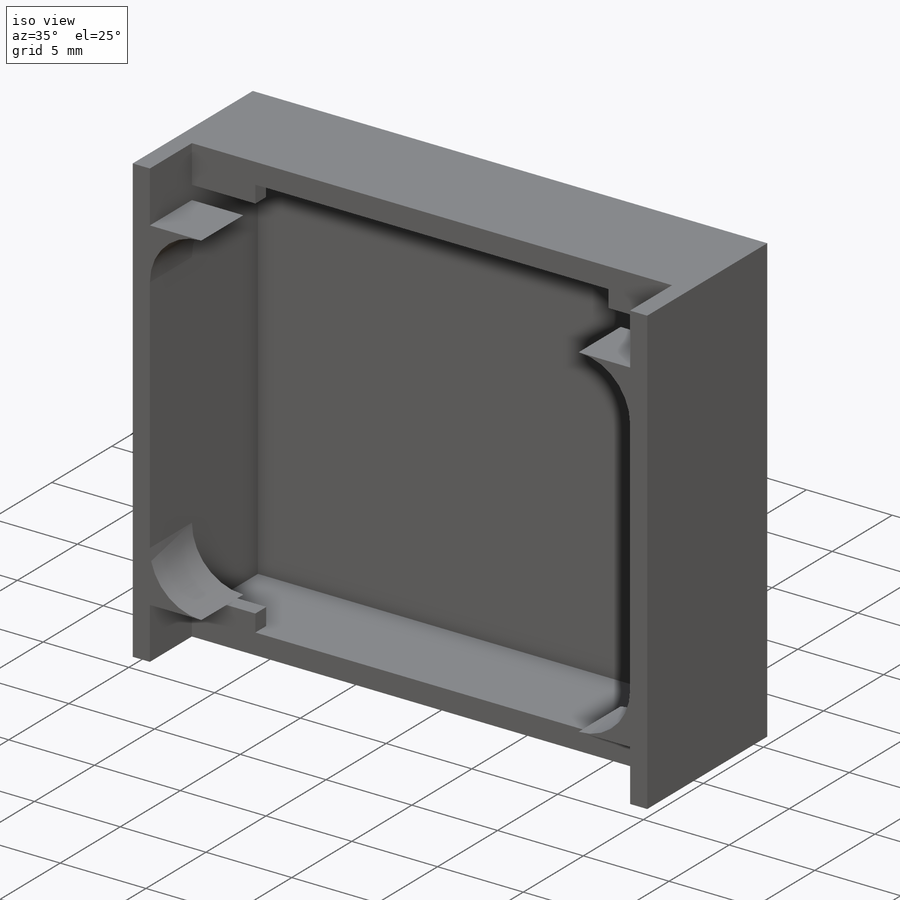
[diagram: iso view]
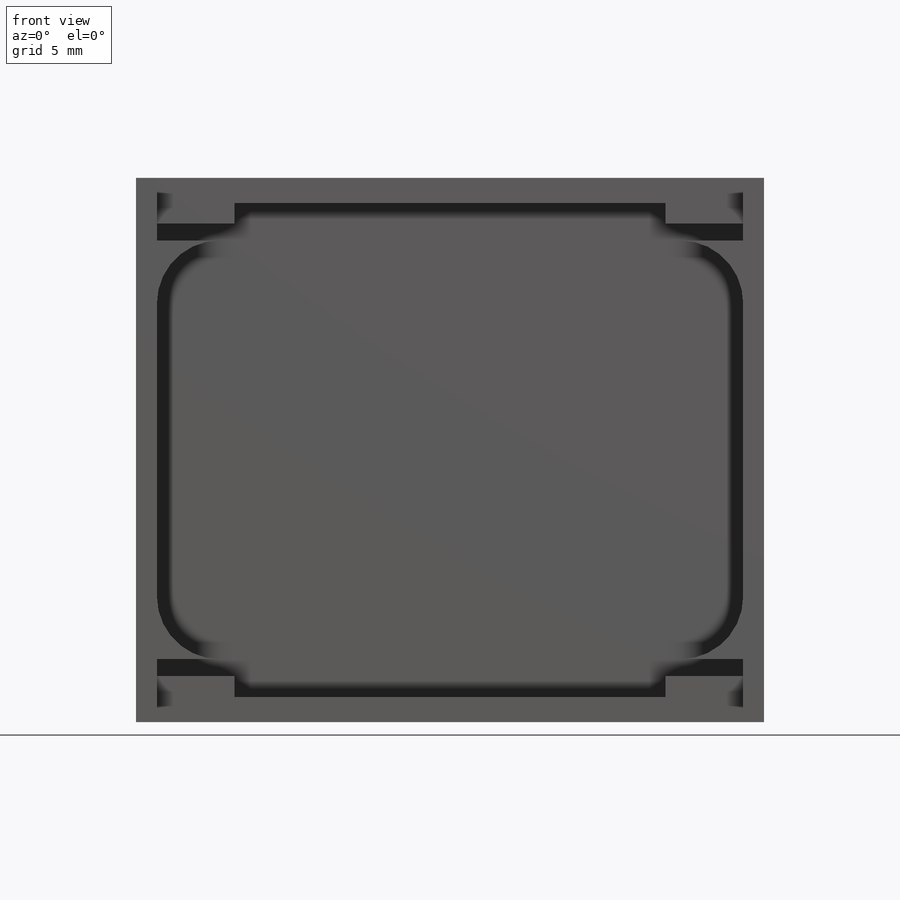
[diagram: front view]
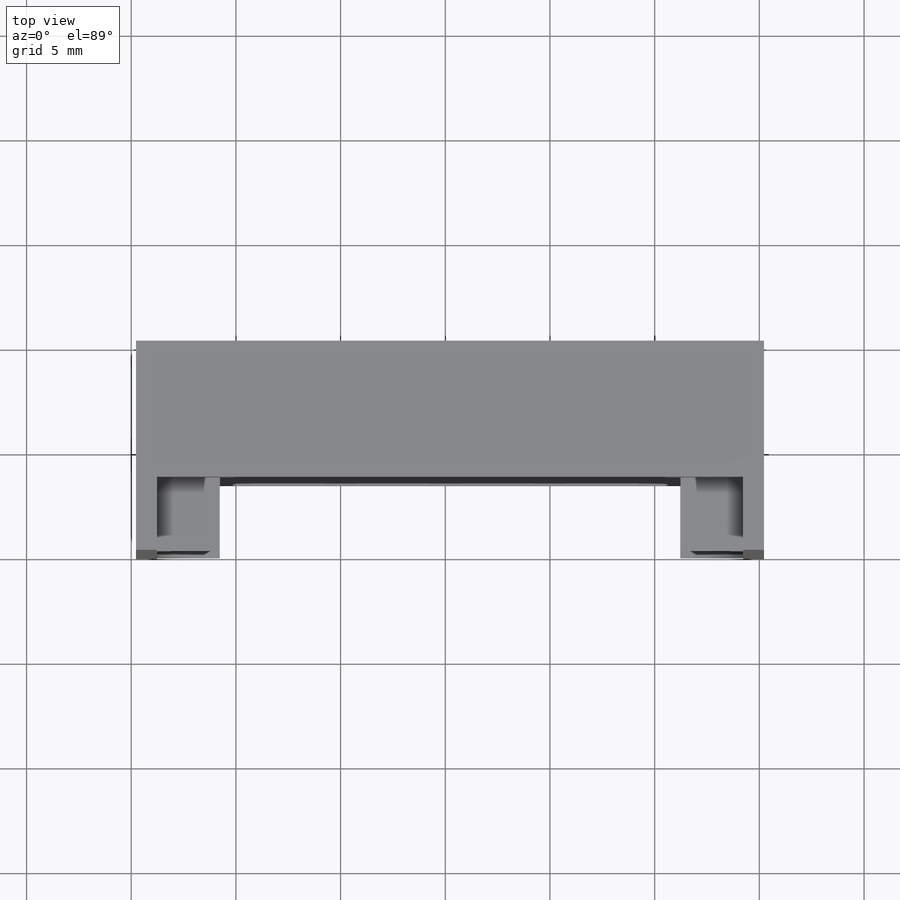
[diagram: top view]
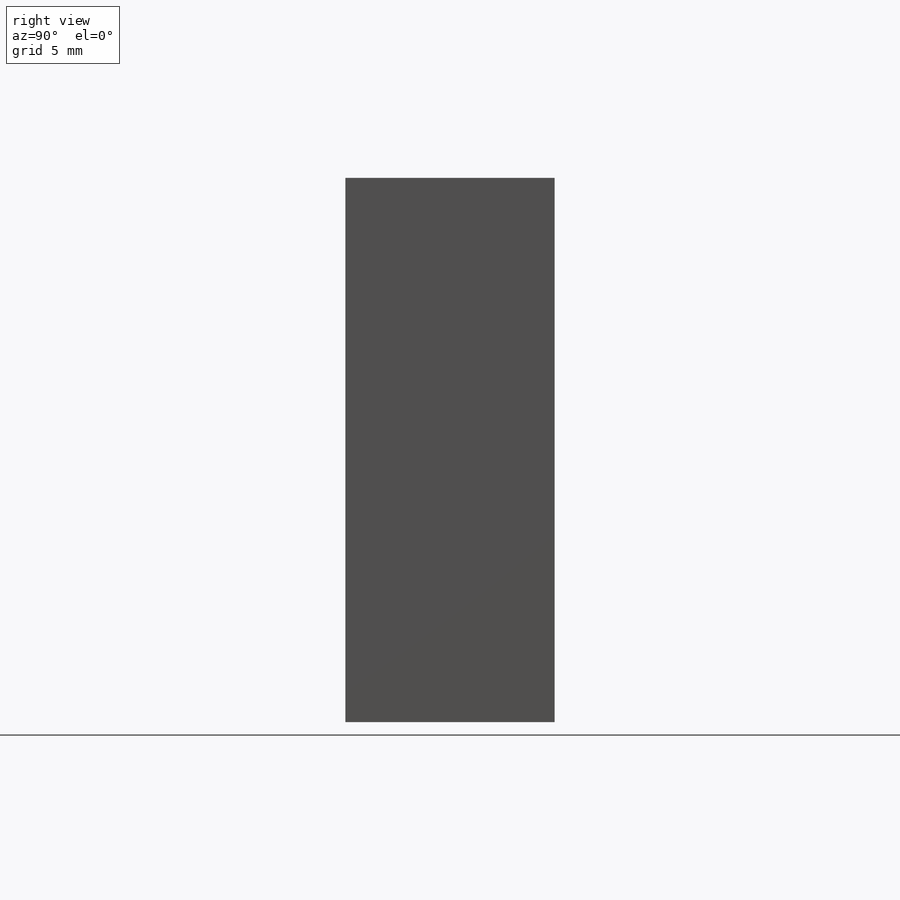
[diagram: right view]
SOLIDWORKS PART (.sldprt)
format: sldprt  version: not decoded by parser v0  size: 253,952 bytes
history: native  units: mm
features: sketch x6, plane x3, extrude x3, cut_extrude x3, material x1 (+10 scaffold rows collapsed)
feature tree (26):
  scaffold x10  (default folders/planes/origin — collapsed)
  material  "Material <not specified>"
  plane  "Ön Düzlem"
  plane  "Üst Düzlem"
  plane  "Sağ Düzlem"
  sketch  "Sketch1"  dims[D1=30.0mm D2=26.0mm]
  extrude  "Boss-Extrude1"  Depth=10mm
  sketch  "Sketch2"  dims[c1.D1=~3.034202mm c1.D3=~4.027961mm c1.D5=~1.815874mm c2.D1=1.2mm c2.D2=1.2mm c2.D3=4.0mm c2.D4=4.0mm c3.D1=4.0mm c3.D2=6.0mm c3.D3=6.0mm c3.D4=4.0mm]
  cut_extrude  "Cut-Extrude2"  Depth=3.5mm
  sketch  "Sketch3"  dims[D1=1.0mm D2=1.0mm]
  cut_extrude  "Cut-Extrude3"  Depth=3.5mm
  sketch  "Sketch4"  dims[D1=1.2mm D2=1.2mm D3=1.0mm D4=1.0mm]
  cut_extrude  "Cut-Extrude4"  Depth=5.5mm
  sketch  "Sketch5"  dims[D1=0.9mm D2=0.0mm D3=3.7mm D4=3.7mm]
  extrude  "Boss-Extrude2"  Depth=1mm
  sketch  "Sketch6"  dims[D1=0.9mm D2=3.7mm D3=3.7mm]
  extrude  "Boss-Extrude3"  Depth=1mm
decode coverage: 12 of 12 modeling features carry decoded parameters
note: ~ marks probable driven/reference dimensions
note: suppression state not decoded; provenance and decode notes live in map.json
